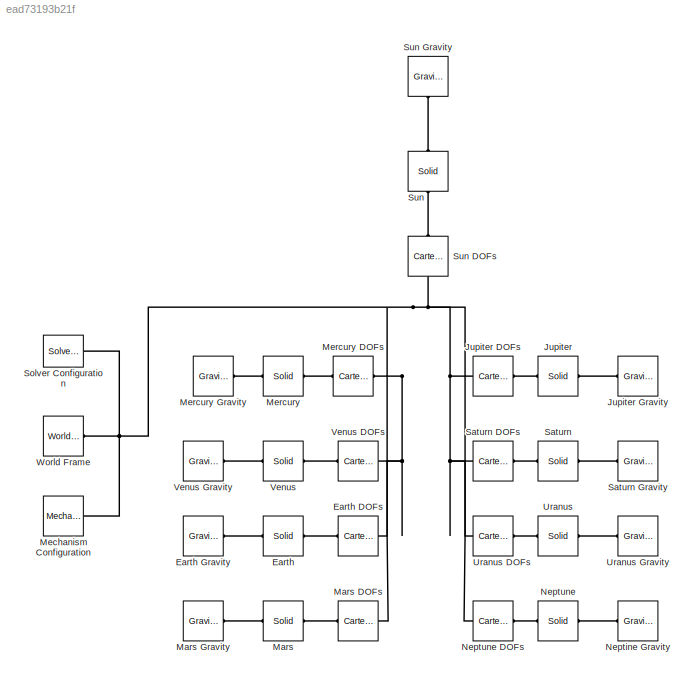
MODEL slx_ead73193b21f
KIND model
CONFIG AbsTol = auto
CONFIG FixedStep = auto
CONFIG MaxStep = 60*60
CONFIG MinStep = auto
CONFIG RelTol = 1e-3
CONFIG SampleTimeConstraint = Unconstrained
CONFIG Solver = ode45
CONFIG SolverMode = Auto
CONFIG SolverName = ode45
CONFIG StartTime = 0.0
CONFIG StopTime = 365*24*60*60
WORKSPACE source: MATLAB code (in-file)
WORKSPACE SunScaling = 0.5e2  (= 50)
WORKSPACE TerrestrialPlanetScaling = 1.2e3  (= 1200)
WORKSPACE GasGiantScaling = 2.5e2  (= 250)
WORKSPACE code: Sun.M = 1.99e30;
WORKSPACE code: Sun.R = 6.96e8*SunScaling;
WORKSPACE code: Sun.RGB = [1 0.5 0];
WORKSPACE code: Sun.Px = 5.5850e+08;
WORKSPACE code: Sun.Py = 5.5850e+08;
WORKSPACE code: Sun.Pz = 5.5850e+08;
WORKSPACE code: Sun.Vx = -1.4663;
WORKSPACE code: Sun.Vy = 11.1238;
WORKSPACE code: Sun.Vz = 4.8370;
WORKSPACE code: Mercury.M =3.30e23;
WORKSPACE code: Mercury.R = 2.44e6*TerrestrialPlanetScaling;
WORKSPACE code: Mercury.RGB = [0.5 0.5 0.5];
WORKSPACE code: Mercury.Px = 5.1979e+10;
WORKSPACE code: Mercury.Py = 7.6928e+09;
WORKSPACE code: Mercury.Pz = -1.2845e+09;
WORKSPACE code: Mercury.Vx = -1.5205e+04;
WORKSPACE code: Mercury.Vy = 4.4189e+04;
WORKSPACE code: Mercury.Vz = 2.5180e+04;
WORKSPACE code: Venus.M = 4.87e24;
WORKSPACE code: Venus.R = 6.05e6*TerrestrialPlanetScaling;
WORKSPACE code: Venus.RGB = [1 0.9 0];
WORKSPACE code: Venus.Px = -1.5041e+10;
WORKSPACE code: Venus.Py = 9.7080e+10;
WORKSPACE code: Venus.Pz = 4.4635e+10;
WORKSPACE code: Venus.Vx = -3.4770e+04;
WORKSPACE code: Venus.Vy = -5.5933e+03;
WORKSPACE code: Venus.Vz = -316.8994;
WORKSPACE code: Earth.M = 5.97e24;
WORKSPACE code: Earth.R = 6.05e6*TerrestrialPlanetScaling;
WORKSPACE code: Earth.RGB = [0.3 0.6 0.8];
WORKSPACE code: Earth.Px = -1.1506e+09;
WORKSPACE code: Earth.Py = -1.3910e+11;
WORKSPACE code: Earth.Pz = -6.0330e+10;
WORKSPACE code: Earth.Vx = 2.9288e+04;
WORKSPACE code: Earth.Vy = -398.5759;
WORKSPACE code: Earth.Vz = -172.5873;
WORKSPACE code: Mars.M = 6.42e23;
WORKSPACE code: Mars.R = 3.39e6*TerrestrialPlanetScaling;
WORKSPACE code: Mars.RGB = [0.6 0.2 0.4];
WORKSPACE code: Mars.Px = -4.8883e+10;
WORKSPACE code: Mars.Py = -1.9686e+11;
WORKSPACE code: Mars.Pz = -8.8994e+10;
WORKSPACE code: Mars.Vx = 2.4533e+04;
WORKSPACE code: Mars.Vy = -2.7622e+03;
WORKSPACE code: Mars.Vz = -1.9295e+03;
WORKSPACE code: Jupiter.M = 1.90e27;
WORKSPACE code: Jupiter.R = 6.99e7*GasGiantScaling;
WORKSPACE code: Jupiter.RGB = [0.6 0 0.3];
WORKSPACE code: Jupiter.Px = -8.1142e+11;
WORKSPACE code: Jupiter.Py = 4.5462e+10;
WORKSPACE code: Jupiter.Pz = 3.9229e+10;
WORKSPACE code: Jupiter.Vx = -1.0724e+03;
WORKSPACE code: Jupiter.Vy = -1.1422e+04;
WORKSPACE code: Jupiter.Vz = -4.8696e+03;
WORKSPACE code: Saturn.M = 5.68e26;
WORKSPACE code: Saturn.R = 5.82e7*GasGiantScaling;
WORKSPACE code: Saturn.RGB = [1 1 0];
WORKSPACE code: Saturn.Px = -4.2780e+11;
WORKSPACE code: Saturn.Py = -1.3353e+12;
WORKSPACE code: Saturn.Pz = -5.3311e+11;
WORKSPACE code: Saturn.Vx = 8.7288e+03;
WORKSPACE code: Saturn.Vy = -2.4369e+03;
WORKSPACE code: Saturn.Vz = -1.3824e+03;
WORKSPACE code: Uranus.M = 8.68e25;
WORKSPACE code: Uranus.R = 2.54e7*GasGiantScaling;
WORKSPACE code: Uranus.RGB = [0.3 0.8 0.8];
WORKSPACE code: Uranus.Px = 2.7878e+12;
WORKSPACE code: Uranus.Py = 9.9509e+11;
WORKSPACE code: Uranus.Pz = 3.9639e+08;
WORKSPACE code: Uranus.Vx = -2.4913e+03;
WORKSPACE code: Uranus.Vy = 5.5197e+03;
WORKSPACE code: Uranus.Vz = 2.4527e+03;
WORKSPACE code: Neptune.M = 1.02e26;
WORKSPACE code: Neptune.R = 2.46e7*GasGiantScaling;
WORKSPACE code: Neptune.RGB = [0.1 0.7 0.8];
WORKSPACE code: Neptune.Px = 4.2097e+12;
WORKSPACE code: Neptune.Py = -1.3834e+12;
WORKSPACE code: Neptune.Pz = -6.7105e+11;
WORKSPACE code: Neptune.Vx = 1.8271e+03;
WORKSPACE code: Neptune.Vy = 4.7731e+03;
WORKSPACE code: Neptune.Vz = 1.9082e+03;
BLOCK [Reference] Earth  REF=sm_lib/Body Elements/Solid
  Ports = [0, 0, 0, 0, 0, 1, 1]
  SourceBlock = sm_lib/Body Elements/Solid
  SourceType = Solid
BLOCK [Reference] Earth DOFs  REF=sm_lib/Joints/Cartesian
Joint
  Ports = [0, 0, 0, 0, 0, 1, 1]
  SourceBlock = sm_lib/Joints/Cartesian\nJoint
  SourceType = Cartesian\nJoint
BLOCK [Reference] Earth Gravity  REF=sm_lib/Forces and
Torques/Gravitational
Field
  Ports = [0, 0, 0, 0, 0, 1]
  SourceBlock = sm_lib/Forces and\nTorques/Gravitational\nField
  SourceType = Gravitational\nField
BLOCK [Reference] Jupiter  REF=sm_lib/Body Elements/Solid
  Ports = [0, 0, 0, 0, 0, 1, 1]
  SourceBlock = sm_lib/Body Elements/Solid
  SourceType = Solid
BLOCK [Reference] Jupiter DOFs  REF=sm_lib/Joints/Cartesian
Joint
  Ports = [0, 0, 0, 0, 0, 1, 1]
  SourceBlock = sm_lib/Joints/Cartesian\nJoint
  SourceType = Cartesian\nJoint
BLOCK [Reference] Jupiter Gravity  REF=sm_lib/Forces and
Torques/Gravitational
Field
  Ports = [0, 0, 0, 0, 0, 1]
  SourceBlock = sm_lib/Forces and\nTorques/Gravitational\nField
  SourceType = Gravitational\nField
BLOCK [Reference] Mars  REF=sm_lib/Body Elements/Solid
  Ports = [0, 0, 0, 0, 0, 1, 1]
  SourceBlock = sm_lib/Body Elements/Solid
  SourceType = Solid
BLOCK [Reference] Mars DOFs  REF=sm_lib/Joints/Cartesian
Joint
  Ports = [0, 0, 0, 0, 0, 1, 1]
  SourceBlock = sm_lib/Joints/Cartesian\nJoint
  SourceType = Cartesian\nJoint
BLOCK [Reference] Mars Gravity  REF=sm_lib/Forces and
Torques/Gravitational
Field
  Ports = [0, 0, 0, 0, 0, 1]
  SourceBlock = sm_lib/Forces and\nTorques/Gravitational\nField
  SourceType = Gravitational\nField
BLOCK [Reference] Mechanism Configuration  REF=sm_lib/Utilities/Mechanism
Configuration
  Ports = [0, 0, 0, 0, 0, 0, 1]
  SourceBlock = sm_lib/Utilities/Mechanism\nConfiguration
  SourceType = Mechanism\nConfiguration
BLOCK [Reference] Mercury  REF=sm_lib/Body Elements/Solid
  Ports = [0, 0, 0, 0, 0, 1, 1]
  SourceBlock = sm_lib/Body Elements/Solid
  SourceType = Solid
BLOCK [Reference] Mercury DOFs  REF=sm_lib/Joints/Cartesian
Joint
  Ports = [0, 0, 0, 0, 0, 1, 1]
  SourceBlock = sm_lib/Joints/Cartesian\nJoint
  SourceType = Cartesian\nJoint
BLOCK [Reference] Mercury Gravity  REF=sm_lib/Forces and
Torques/Gravitational
Field
  Ports = [0, 0, 0, 0, 0, 1]
  SourceBlock = sm_lib/Forces and\nTorques/Gravitational\nField
  SourceType = Gravitational\nField
BLOCK [Reference] Neptine Gravity  REF=sm_lib/Forces and
Torques/Gravitational
Field
  Ports = [0, 0, 0, 0, 0, 1]
  SourceBlock = sm_lib/Forces and\nTorques/Gravitational\nField
  SourceType = Gravitational\nField
BLOCK [Reference] Neptune  REF=sm_lib/Body Elements/Solid
  Ports = [0, 0, 0, 0, 0, 1, 1]
  SourceBlock = sm_lib/Body Elements/Solid
  SourceType = Solid
BLOCK [Reference] Neptune DOFs  REF=sm_lib/Joints/Cartesian
Joint
  Ports = [0, 0, 0, 0, 0, 1, 1]
  SourceBlock = sm_lib/Joints/Cartesian\nJoint
  SourceType = Cartesian\nJoint
BLOCK [Reference] Saturn  REF=sm_lib/Body Elements/Solid
  Ports = [0, 0, 0, 0, 0, 1, 1]
  SourceBlock = sm_lib/Body Elements/Solid
  SourceType = Solid
BLOCK [Reference] Saturn DOFs  REF=sm_lib/Joints/Cartesian
Joint
  Ports = [0, 0, 0, 0, 0, 1, 1]
  SourceBlock = sm_lib/Joints/Cartesian\nJoint
  SourceType = Cartesian\nJoint
BLOCK [Reference] Saturn Gravity  REF=sm_lib/Forces and
Torques/Gravitational
Field
  Ports = [0, 0, 0, 0, 0, 1]
  SourceBlock = sm_lib/Forces and\nTorques/Gravitational\nField
  SourceType = Gravitational\nField
BLOCK [Reference] Solver Configuration  REF=nesl_utility/Solver
Configuration
  Ports = [0, 0, 0, 0, 0, 0, 1]
  SourceBlock = nesl_utility/Solver\nConfiguration
  SourceType = Solver\nConfiguration
BLOCK [Reference] Sun  REF=sm_lib/Body Elements/Solid
  Ports = [0, 0, 0, 0, 0, 1, 1]
  SourceBlock = sm_lib/Body Elements/Solid
  SourceType = Solid
BLOCK [Reference] Sun DOFs  REF=sm_lib/Joints/Cartesian
Joint
  Ports = [0, 0, 0, 0, 0, 1, 1]
  SourceBlock = sm_lib/Joints/Cartesian\nJoint
  SourceType = Cartesian\nJoint
BLOCK [Reference] Sun Gravity  REF=sm_lib/Forces and
Torques/Gravitational
Field
  Ports = [0, 0, 0, 0, 0, 1]
  SourceBlock = sm_lib/Forces and\nTorques/Gravitational\nField
  SourceType = Gravitational\nField
BLOCK [Reference] Uranus  REF=sm_lib/Body Elements/Solid
  Ports = [0, 0, 0, 0, 0, 1, 1]
  SourceBlock = sm_lib/Body Elements/Solid
  SourceType = Solid
BLOCK [Reference] Uranus DOFs  REF=sm_lib/Joints/Cartesian
Joint
  Ports = [0, 0, 0, 0, 0, 1, 1]
  SourceBlock = sm_lib/Joints/Cartesian\nJoint
  SourceType = Cartesian\nJoint
BLOCK [Reference] Uranus Gravity  REF=sm_lib/Forces and
Torques/Gravitational
Field
  Ports = [0, 0, 0, 0, 0, 1]
  SourceBlock = sm_lib/Forces and\nTorques/Gravitational\nField
  SourceType = Gravitational\nField
BLOCK [Reference] Venus  REF=sm_lib/Body Elements/Solid
  Ports = [0, 0, 0, 0, 0, 1, 1]
  SourceBlock = sm_lib/Body Elements/Solid
  SourceType = Solid
BLOCK [Reference] Venus DOFs  REF=sm_lib/Joints/Cartesian
Joint
  Ports = [0, 0, 0, 0, 0, 1, 1]
  SourceBlock = sm_lib/Joints/Cartesian\nJoint
  SourceType = Cartesian\nJoint
BLOCK [Reference] Venus Gravity  REF=sm_lib/Forces and
Torques/Gravitational
Field
  Ports = [0, 0, 0, 0, 0, 1]
  SourceBlock = sm_lib/Forces and\nTorques/Gravitational\nField
  SourceType = Gravitational\nField
BLOCK [Reference] World Frame  REF=sm_lib/Frames and
Transforms/World Frame
  Ports = [0, 0, 0, 0, 0, 0, 1]
  SourceBlock = sm_lib/Frames and\nTransforms/World Frame
  SourceType = World Frame
PNET net1: Earth DOFs:LConn1 -- Jupiter DOFs:RConn1 -- Mars DOFs:LConn1 -- Mechanism Configuration:RConn1 -- Mercury DOFs:LConn1 -- Neptune DOFs:RConn1 -- Saturn DOFs:RConn1 -- Solver Configuration:RConn1 -- Sun DOFs:LConn1 -- Uranus DOFs:RConn1 -- Venus DOFs:LConn1 -- World Frame:RConn1
PLINE Earth DOFs:RConn1 -- Earth:RConn1
PLINE Earth Gravity:LConn1 -- Earth:LConn1
PLINE Jupiter DOFs:LConn1 -- Jupiter:RConn1
PLINE Jupiter Gravity:LConn1 -- Jupiter:LConn1
PLINE Mars DOFs:RConn1 -- Mars:RConn1
PLINE Mars Gravity:LConn1 -- Mars:LConn1
PLINE Mercury DOFs:RConn1 -- Mercury:RConn1
PLINE Mercury Gravity:LConn1 -- Mercury:LConn1
PLINE Neptine Gravity:LConn1 -- Neptune:LConn1
PLINE Neptune DOFs:LConn1 -- Neptune:RConn1
PLINE Saturn DOFs:LConn1 -- Saturn:RConn1
PLINE Saturn Gravity:LConn1 -- Saturn:LConn1
PLINE Sun DOFs:RConn1 -- Sun:RConn1
PLINE Sun Gravity:LConn1 -- Sun:LConn1
PLINE Uranus DOFs:LConn1 -- Uranus:RConn1
PLINE Uranus Gravity:LConn1 -- Uranus:LConn1
PLINE Venus DOFs:RConn1 -- Venus:RConn1
PLINE Venus Gravity:LConn1 -- Venus:LConn1
note: PNET lines group multi-terminal physical nets as a canonical sorted terminal list (undirected conserving connections); 2-terminal nets keep the pairwise PLINE form
